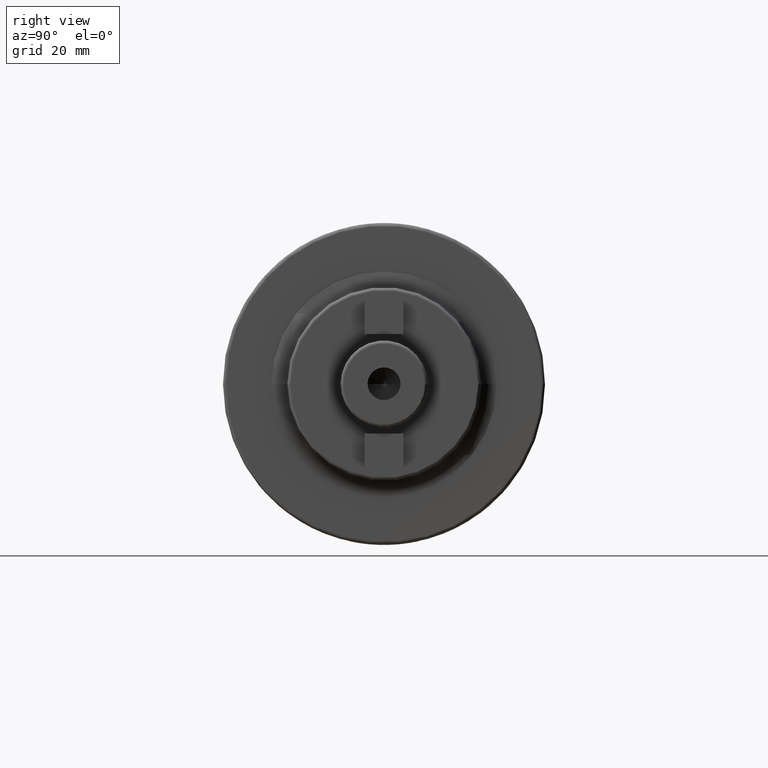
[diagram: clean part render]
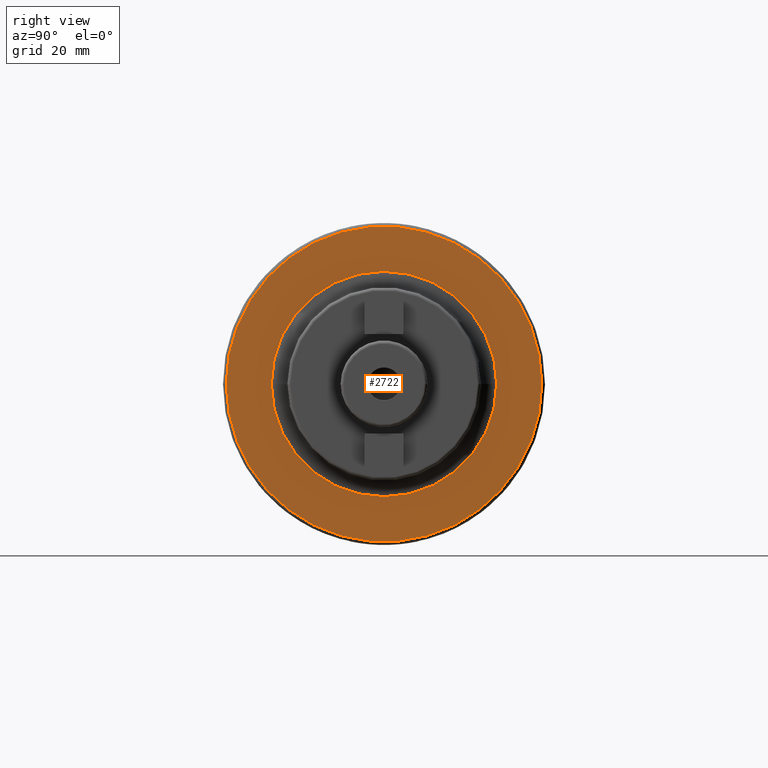
[diagram: same view with one face highlighted and labeled with its STEP entity id]
A machine part, right view. The second image highlights one B-rep face of the part: STEP entity #2722.
In plain terms, the highlighted planar face has unit normal (1, 0, 0).
Its self-contained STEP definition (entity closure, byte-faithful):
#814=CARTESIAN_POINT('',(3.8E1,0.E0,0.E0));
#815=DIRECTION('',(1.E0,0.E0,0.E0));
#816=DIRECTION('',(0.E0,1.E0,0.E0));
#817=AXIS2_PLACEMENT_3D('',#814,#815,#816);
#829=CARTESIAN_POINT('',(3.8E1,0.E0,0.E0));
#830=DIRECTION('',(-1.E0,0.E0,0.E0));
#831=DIRECTION('',(0.E0,1.E0,0.E0));
#832=AXIS2_PLACEMENT_3D('',#829,#830,#831);
#834=CARTESIAN_POINT('',(3.8E1,0.E0,0.E0));
#835=DIRECTION('',(1.E0,0.E0,0.E0));
#836=DIRECTION('',(0.E0,-1.E0,0.E0));
#837=AXIS2_PLACEMENT_3D('',#834,#835,#836);
#839=CARTESIAN_POINT('',(3.8E1,0.E0,0.E0));
#840=DIRECTION('',(1.E0,0.E0,0.E0));
#841=DIRECTION('',(0.E0,1.E0,0.E0));
#842=AXIS2_PLACEMENT_3D('',#839,#840,#841);
#1436=CARTESIAN_POINT('',(3.8E1,4.89875E1,0.E0));
#1437=VERTEX_POINT('',#1436);
#1438=CARTESIAN_POINT('',(3.8E1,-4.89875E1,-1.199847701465E-14));
#1439=VERTEX_POINT('',#1438);
#1571=CARTESIAN_POINT('',(3.8E1,-3.5E1,0.E0));
#1572=CARTESIAN_POINT('',(3.8E1,3.5E1,0.E0));
#1573=VERTEX_POINT('',#1571);
#1574=VERTEX_POINT('',#1572);
#2707=CARTESIAN_POINT('',(3.8E1,0.E0,0.E0));
#2708=DIRECTION('',(1.E0,0.E0,0.E0));
#2709=DIRECTION('',(0.E0,-1.E0,0.E0));
#2710=AXIS2_PLACEMENT_3D('',#2707,#2708,#2709);
#2711=PLANE('',#2710);
#2712=ORIENTED_EDGE('',*,*,#2702,.T.);
#2713=ORIENTED_EDGE('',*,*,#2686,.F.);
#2714=EDGE_LOOP('',(#2712,#2713));
#2715=FACE_OUTER_BOUND('',#2714,.F.);
#2717=ORIENTED_EDGE('',*,*,#2716,.T.);
#2719=ORIENTED_EDGE('',*,*,#2718,.T.);
#2720=EDGE_LOOP('',(#2717,#2719));
#2721=FACE_BOUND('',#2720,.F.);
#2722=ADVANCED_FACE('',(#2715,#2721),#2711,.T.);
#818=CIRCLE('',#817,4.89875E1);
#833=CIRCLE('',#832,4.89875E1);
#838=CIRCLE('',#837,3.5E1);
#843=CIRCLE('',#842,3.5E1);
#2686=EDGE_CURVE('',#1437,#1439,#818,.T.);
#2702=EDGE_CURVE('',#1437,#1439,#833,.T.);
#2716=EDGE_CURVE('',#1573,#1574,#838,.T.);
#2718=EDGE_CURVE('',#1574,#1573,#843,.T.);